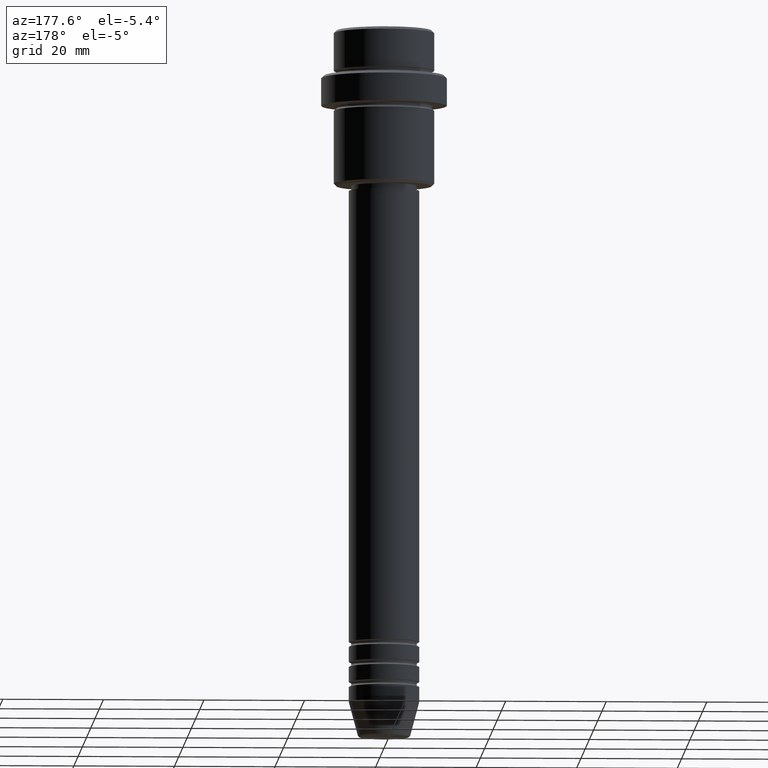
[diagram: clean part render]
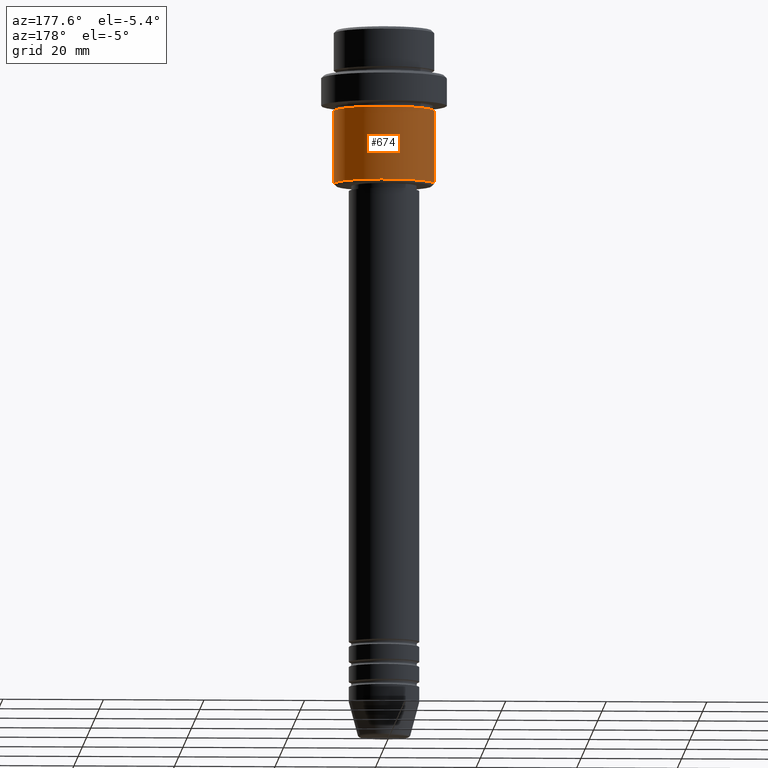
[diagram: same view with one face highlighted and labeled with its STEP entity id]
A machine part, auxiliary view. The second image highlights one B-rep face of the part: STEP entity #674.
In plain terms, the highlighted cylindrical surface (partial cylindrical patch) has radius 10 mm, axis along (-0, -0, 1).
Its self-contained STEP definition (entity closure, byte-faithful):
#17 = EDGE_CURVE ( 'NONE', #871, #887, #1178, .T. ) ;
#41 = FACE_OUTER_BOUND ( 'NONE', #1220, .T. ) ;
#95 = ORIENTED_EDGE ( 'NONE', *, *, #1244, .T. ) ;
#176 = DIRECTION ( 'NONE',  ( -0.000000000000000000, -0.000000000000000000, 1.000000000000000000 ) ) ;
#235 = VERTEX_POINT ( 'NONE', #1184 ) ;
#249 = CARTESIAN_POINT ( 'NONE',  ( 0.000000000000000000, 0.000000000000000000, 0.000000000000000000 ) ) ;
#254 = VECTOR ( 'NONE', #1278, 1000.000000000000000 ) ;
#291 = LINE ( 'NONE', #298, #952 ) ;
#298 = CARTESIAN_POINT ( 'NONE',  ( -9.999999999999998224, 1.224646799147353059E-15, 0.000000000000000000 ) ) ;
#385 = DIRECTION ( 'NONE',  ( -0.000000000000000000, -0.000000000000000000, 1.000000000000000000 ) ) ;
#447 = ORIENTED_EDGE ( 'NONE', *, *, #17, .F. ) ;
#554 = CARTESIAN_POINT ( 'NONE',  ( -9.999999999999998224, 1.224646799147353059E-15, -16.00000000000000000 ) ) ;
#577 = DIRECTION ( 'NONE',  ( 1.000000000000000000, 0.000000000000000000, 0.000000000000000000 ) ) ;
#594 = CIRCLE ( 'NONE', #1400, 9.999999999999998224 ) ;
#603 = LINE ( 'NONE', #1035, #254 ) ;
#606 = CARTESIAN_POINT ( 'NONE',  ( 0.000000000000000000, 0.000000000000000000, -30.50000000000001776 ) ) ;
#648 = CARTESIAN_POINT ( 'NONE',  ( 0.000000000000000000, 0.000000000000000000, -16.00000000000000000 ) ) ;
#674 = ADVANCED_FACE ( 'NONE', ( #41 ), #904, .T. ) ;
#696 = CARTESIAN_POINT ( 'NONE',  ( 9.999999999999998224, 0.000000000000000000, -30.50000000000001776 ) ) ;
#741 = VERTEX_POINT ( 'NONE', #696 ) ;
#744 = EDGE_CURVE ( 'NONE', #235, #887, #291, .T. ) ;
#781 = ORIENTED_EDGE ( 'NONE', *, *, #744, .T. ) ;
#801 = ORIENTED_EDGE ( 'NONE', *, *, #1377, .F. ) ;
#857 = DIRECTION ( 'NONE',  ( 1.000000000000000000, 0.000000000000000000, 0.000000000000000000 ) ) ;
#871 = VERTEX_POINT ( 'NONE', #1269 ) ;
#887 = VERTEX_POINT ( 'NONE', #554 ) ;
#904 = CYLINDRICAL_SURFACE ( 'NONE', #1045, 9.999999999999998224 ) ;
#952 = VECTOR ( 'NONE', #176, 1000.000000000000000 ) ;
#1035 = CARTESIAN_POINT ( 'NONE',  ( 9.999999999999998224, 0.000000000000000000, 0.000000000000000000 ) ) ;
#1040 = AXIS2_PLACEMENT_3D ( 'NONE', #648, #1074, #857 ) ;
#1045 = AXIS2_PLACEMENT_3D ( 'NONE', #249, #1227, #577 ) ;
#1074 = DIRECTION ( 'NONE',  ( -0.000000000000000000, -0.000000000000000000, 1.000000000000000000 ) ) ;
#1139 = DIRECTION ( 'NONE',  ( -1.000000000000000000, 0.000000000000000000, 0.000000000000000000 ) ) ;
#1178 = CIRCLE ( 'NONE', #1040, 9.999999999999998224 ) ;
#1184 = CARTESIAN_POINT ( 'NONE',  ( -9.999999999999998224, 1.224646799147353059E-15, -30.50000000000001776 ) ) ;
#1220 = EDGE_LOOP ( 'NONE', ( #95, #781, #447, #801 ) ) ;
#1227 = DIRECTION ( 'NONE',  ( -0.000000000000000000, -0.000000000000000000, 1.000000000000000000 ) ) ;
#1244 = EDGE_CURVE ( 'NONE', #741, #235, #594, .T. ) ;
#1269 = CARTESIAN_POINT ( 'NONE',  ( 9.999999999999998224, 0.000000000000000000, -16.00000000000000000 ) ) ;
#1278 = DIRECTION ( 'NONE',  ( -0.000000000000000000, -0.000000000000000000, 1.000000000000000000 ) ) ;
#1377 = EDGE_CURVE ( 'NONE', #741, #871, #603, .T. ) ;
#1400 = AXIS2_PLACEMENT_3D ( 'NONE', #606, #385, #1139 ) ;